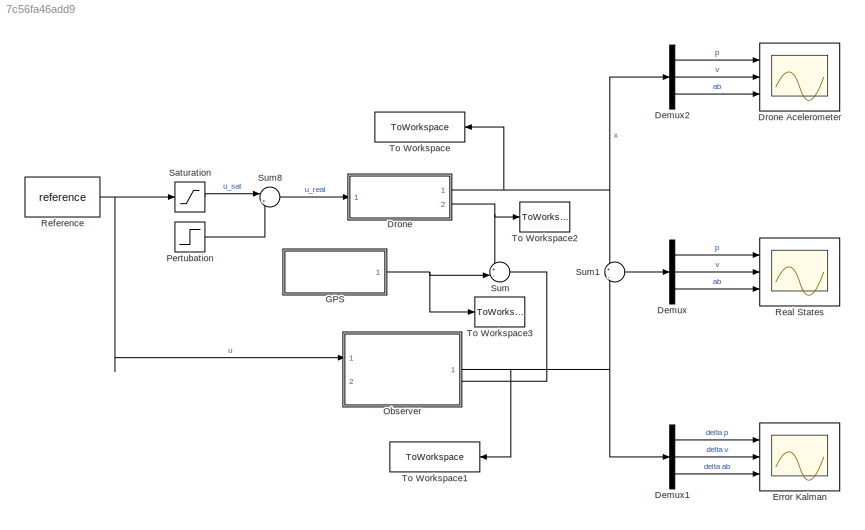
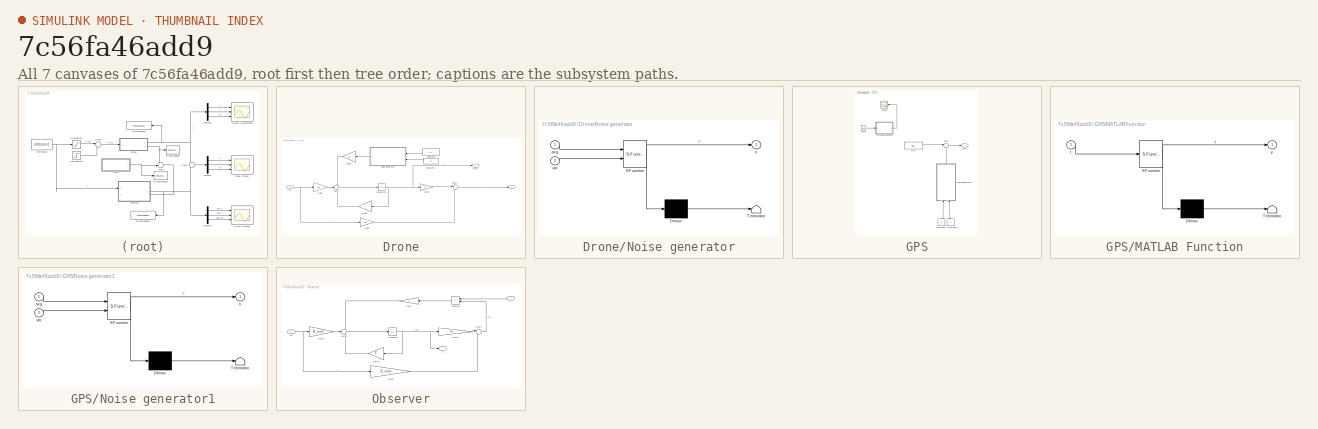
[diagram: thumbnail index - all 7 canvases of the model, root first then tree order]
MODEL slx_7c56fa46add9
KIND model
CONFIG AbsTol = auto
CONFIG EnableMultiTasking = off
CONFIG FixedStep = auto
CONFIG MaxStep = auto
CONFIG MinStep = auto
CONFIG RelTol = 1e-3
CONFIG SampleTimeConstraint = Unconstrained
CONFIG SolverName = VariableStepAuto
CONFIG StartTime = 0.0
CONFIG StopTime = 30
BLOCK [Demux] Demux
  Outputs = 3
  Ports = [1, 3]
BLOCK [Demux] Demux1
  Outputs = 3
  Ports = [1, 3]
BLOCK [Demux] Demux2
  Outputs = 3
  Ports = [1, 3]
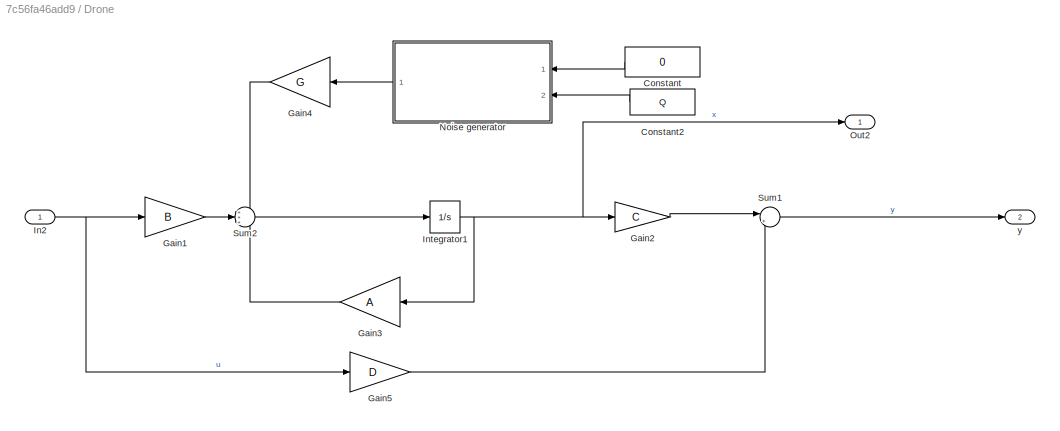
BLOCK [SubSystem] Drone
  Ports = [1, 2]
  RequestExecContextInheritance = off
BLOCK [Scope] Drone Acelerometer
  Floating = off
  NumInputPorts = 3
  Ports = [3]
  ScopeSpecificationString = Simulink.scopes.TimeScopeBlockCfg('CurrentConfiguration', extmgr.ConfigurationSet(extmgr.Configuration('Core','General UI',true),extmgr.Configuration('Core','Source UI',true),extmgr.Configuration('Sources','WiredSimulink',true,'DataLoggingVariableName','ScopeData2'),extmgr.Configuration('Visuals','Time Domain',true,'SerializedDisplays',{struct('MinYLimReal','-1.04091','MaxYLimReal','2.21958','YLab...<+3567ch>
BLOCK [Constant] Drone/Constant
  Value = 0
  VectorParams1D = off
BLOCK [Constant] Drone/Constant2
  Value = Q
BLOCK [Gain] Drone/Gain1
  Gain = B
  Multiplication = Matrix(K*u) (u vector)
BLOCK [Gain] Drone/Gain2
  Gain = C
  Multiplication = Matrix(K*u) (u vector)
BLOCK [Gain] Drone/Gain3
  Gain = A
  Multiplication = Matrix(K*u) (u vector)
BLOCK [Gain] Drone/Gain4
  Gain = G
  Multiplication = Matrix(K*u) (u vector)
BLOCK [Gain] Drone/Gain5
  Gain = D
  Multiplication = Matrix(K*u) (u vector)
BLOCK [Inport] Drone/In2
  IconDisplay = Signal name
BLOCK [Integrator] Drone/Integrator1
  InitialCondition = x0
  Ports = [1, 1]
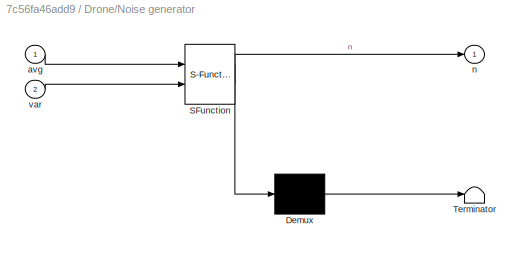
BLOCK [SubSystem] Drone/Noise generator
  ErrorFcn = Stateflow.Translate.translate
  PermitHierarchicalResolution = ExplicitOnly
  Ports = [2, 1]
  RequestExecContextInheritance = off
  SFBlockType = MATLAB Function
  TreatAsAtomicUnit = on
BLOCK [Demux] Drone/Noise generator/ Demux 
  Outputs = 1
  Ports = [1, 1]
BLOCK [S-Function] Drone/Noise generator/ SFunction 
  EnableBusSupport = on
  FunctionName = sf_sfun
  PortCounts = [2 2]
  Ports = [2, 2]
  SFcnIsStateOwnerBlock = off
  SFunctionDeploymentMode = off
  Tag = Stateflow S-Function 4
BLOCK [Terminator] Drone/Noise generator/ Terminator 
BLOCK [Inport] Drone/Noise generator/avg
BLOCK [Outport] Drone/Noise generator/n
BLOCK [Inport] Drone/Noise generator/var
  Port = 2
BLOCK [Outport] Drone/Out2
  IconDisplay = Signal name
BLOCK [Sum] Drone/Sum1
  Inputs = |++
  Ports = [2, 1]
BLOCK [Sum] Drone/Sum2
  Inputs = +++
  Ports = [3, 1]
BLOCK [Outport] Drone/y
  IconDisplay = Signal name
  Port = 2
BLOCK [Scope] Error Kalman
  Floating = off
  NumInputPorts = 3
  Ports = [3]
  ScopeSpecificationString = Simulink.scopes.TimeScopeBlockCfg('CurrentConfiguration', extmgr.ConfigurationSet(extmgr.Configuration('Core','General UI',true),extmgr.Configuration('Core','Source UI',true),extmgr.Configuration('Sources','WiredSimulink',true,'DataLoggingVariableName','ScopeData1'),extmgr.Configuration('Visuals','Time Domain',true,'SerializedDisplays',{struct('MinYLimReal','-1.043','MaxYLimReal','2.21933','YLabel...<+3491ch>
BLOCK [SubSystem] GPS
  Ports = [0, 1]
  RequestExecContextInheritance = off
BLOCK [Clock] GPS/Clock
BLOCK [Constant] GPS/Constant1
  NameLocation = left
  Value = 0
BLOCK [Constant] GPS/Constant3
  NameLocation = left
  Value = R
BLOCK [Constant] GPS/GPS
  SampleTime = h
  Value = gps
  VectorParams1D = off
BLOCK [SubSystem] GPS/MATLAB Function
  ErrorFcn = Stateflow.Translate.translate
  PermitHierarchicalResolution = ExplicitOnly
  Ports = [1, 1]
  RequestExecContextInheritance = off
  SFBlockType = MATLAB Function
  TreatAsAtomicUnit = on
BLOCK [Demux] GPS/MATLAB Function/ Demux 
  Outputs = 1
  Ports = [1, 1]
BLOCK [S-Function] GPS/MATLAB Function/ SFunction 
  EnableBusSupport = on
  FunctionName = sf_sfun
  Parameters = x0
  PortCounts = [1 2]
  Ports = [1, 2]
  SFcnIsStateOwnerBlock = off
  SFunctionDeploymentMode = off
  Tag = Stateflow S-Function 2
BLOCK [Terminator] GPS/MATLAB Function/ Terminator 
BLOCK [Inport] GPS/MATLAB Function/t
BLOCK [Outport] GPS/MATLAB Function/y
BLOCK [SubSystem] GPS/Noise generator1
  ErrorFcn = Stateflow.Translate.translate
  NameLocation = left
  PermitHierarchicalResolution = ExplicitOnly
  Ports = [2, 1]
  RequestExecContextInheritance = off
  SFBlockType = MATLAB Function
  TreatAsAtomicUnit = on
BLOCK [Demux] GPS/Noise generator1/ Demux 
  Outputs = 1
  Ports = [1, 1]
BLOCK [S-Function] GPS/Noise generator1/ SFunction 
  EnableBusSupport = on
  FunctionName = sf_sfun
  PortCounts = [2 2]
  Ports = [2, 2]
  SFcnIsStateOwnerBlock = off
  SFunctionDeploymentMode = off
  Tag = Stateflow S-Function 3
BLOCK [Terminator] GPS/Noise generator1/ Terminator 
BLOCK [Inport] GPS/Noise generator1/avg
BLOCK [Outport] GPS/Noise generator1/n
BLOCK [Inport] GPS/Noise generator1/var
  Port = 2
BLOCK [Outport] GPS/Out1
BLOCK [Scope] GPS/Scope
  Floating = off
  NumInputPorts = 1
  Ports = [1]
  ScopeSpecificationString = Simulink.scopes.TimeScopeBlockCfg('CurrentConfiguration', extmgr.ConfigurationSet(extmgr.Configuration('Core','General UI',true),extmgr.Configuration('Core','Source UI',true),extmgr.Configuration('Sources','WiredSimulink',true,'DataLoggingVariableName','ScopeData3'),extmgr.Configuration('Visuals','Time Domain',true,'SerializedDisplays',{struct('MinYLimReal','-561.375','MaxYLimReal','62.375','YLabe...<+1389ch>
BLOCK [Sum] GPS/Sum
  Inputs = |++
  Ports = [2, 1]
BLOCK [SubSystem] Observer
  PortSchema = {"entries":[{"content":{"sides":[{"content":{"connectorIds":["In1"]},"type":"ConnectorPlacement.EquallySpacedRectSide","uuid":"b6dae28a-5485-44ef-84e6-2d14792229e7"},{"content":{"connectorIds":["In2","Out1"],"side":"RIGHT"},"type":"ConnectorPlacement.EquallySpacedRectSide","uuid":"53a86c87-87d1-415f-9895-91b2b6ac7daf"},{"content":{"connectorIds":[],"side":"TOP"},"type":"ConnectorPlacement.EquallyS...<+390ch>
  Ports = [2, 1]
  RequestExecContextInheritance = off
BLOCK [Gain] Observer/Gain
  Gain = L
  Multiplication = Matrix(K*u) (u vector)
BLOCK [Gain] Observer/Gain1
  Gain = B_error
  Multiplication = Matrix(K*u) (u vector)
BLOCK [Gain] Observer/Gain2
  Gain = H
  Multiplication = Matrix(K*u) (u vector)
BLOCK [Gain] Observer/Gain3
  Gain = F
  Multiplication = Matrix(K*u) (u vector)
BLOCK [Gain] Observer/Gain5
  Gain = D_error
  Multiplication = Matrix(K*u) (u vector)
BLOCK [Inport] Observer/In2
  IconDisplay = Signal name
BLOCK [Integrator] Observer/Integrator
  InitialCondition = x0_observer
  Ports = [1, 1]
BLOCK [Sum] Observer/Subtract
  IconShape = rectangular
  Inputs = +-
  Ports = [2, 1]
BLOCK [Sum] Observer/Sum1
  Inputs = |++
  Ports = [2, 1]
BLOCK [Sum] Observer/Sum2
  Inputs = +++
  Ports = [3, 1]
BLOCK [Outport] Observer/x
  IconDisplay = Signal name
BLOCK [Inport] Observer/y
  Port = 2
BLOCK [Step] Pertubation
  After = wind_final_value
  Before = wind_initial_value
  SampleTime = h_plant
  Time = wind_steptime
BLOCK [Scope] Real States
  Floating = off
  NumInputPorts = 3
  Ports = [3]
  ScopeSpecificationString = Simulink.scopes.TimeScopeBlockCfg('CurrentConfiguration', extmgr.ConfigurationSet(extmgr.Configuration('Core','General UI',true),extmgr.Configuration('Core','Source UI',true),extmgr.Configuration('Sources','WiredSimulink',true),extmgr.Configuration('Visuals','Time Domain',true,'SerializedDisplays',{struct('MinYLimReal','-0.63431','MaxYLimReal','0.87759','YLabelReal','','MinYLimMag','0.00000','MaxY...<+3527ch>
BLOCK [Constant] Reference
  SampleTime = h
  Value = reference
BLOCK [Saturate] Saturation
  LowerLimit = sat_min
  UpperLimit = sat_max
BLOCK [Sum] Sum
  Inputs = +-|
  Ports = [2, 1]
BLOCK [Sum] Sum1
  Inputs = +|-
  Ports = [2, 1]
BLOCK [Sum] Sum8
  Inputs = |++
  Ports = [2, 1]
BLOCK [ToWorkspace] To Workspace
  FixptAsFi = on
  MaxDataPoints = inf
  Ports = [1]
  SampleTime = -1
  SaveFormat = Timeseries
  VariableName = xt
BLOCK [ToWorkspace] To Workspace1
  FixptAsFi = on
  MaxDataPoints = inf
  Ports = [1]
  SampleTime = -1
  SaveFormat = Timeseries
  VariableName = deltax
BLOCK [ToWorkspace] To Workspace2
  FixptAsFi = on
  MaxDataPoints = inf
  Ports = [1]
  SampleTime = -1
  SaveFormat = Timeseries
  VariableName = pt
BLOCK [ToWorkspace] To Workspace3
  FixptAsFi = on
  MaxDataPoints = inf
  Ports = [1]
  SampleTime = -1
  SaveFormat = Timeseries
  VariableName = p
LINE Demux1:1 -> Error Kalman:1
LINE Demux1:2 -> Error Kalman:2
LINE Demux1:3 -> Error Kalman:3
LINE Demux2:1 -> Drone Acelerometer:1
LINE Demux2:2 -> Drone Acelerometer:2
LINE Demux2:3 -> Drone Acelerometer:3
LINE Demux:1 -> Real States:1
LINE Demux:2 -> Real States:2
LINE Demux:3 -> Real States:3
LINE Drone/Constant2:1 -> Drone/Noise generator:2
LINE Drone/Constant:1 -> Drone/Noise generator:1
LINE Drone/Gain1:1 -> Drone/Sum2:2
LINE Drone/Gain2:1 -> Drone/Sum1:1
LINE Drone/Gain3:1 -> Drone/Sum2:3
LINE Drone/Gain4:1 -> Drone/Sum2:1
LINE Drone/Gain5:1 -> Drone/Sum1:2
NET Drone/In2:1 -> Drone/Gain1:1, Drone/Gain5:1
NET Drone/Integrator1:1 -> Drone/Gain2:1, Drone/Gain3:1, Drone/Out2:1
LINE Drone/Noise generator:1 -> Drone/Gain4:1
LINE Drone/Sum1:1 -> Drone/y:1
LINE Drone/Sum2:1 -> Drone/Integrator1:1
NET Drone:1 -> Demux2:1, Sum1:1, To Workspace:1
NET Drone:2 -> Sum:1, To Workspace2:1
LINE GPS/Clock:1 -> GPS/MATLAB Function:1
LINE GPS/Constant1:1 -> GPS/Noise generator1:1
LINE GPS/Constant3:1 -> GPS/Noise generator1:2
LINE GPS/GPS:1 -> GPS/Sum:1
LINE GPS/MATLAB Function:1 -> GPS/Scope:1
LINE GPS/Noise generator1:1 -> GPS/Sum:2
LINE GPS/Sum:1 -> GPS/Out1:1
NET GPS:1 -> Sum:2, To Workspace3:1
LINE Observer/Gain1:1 -> Observer/Sum2:2
LINE Observer/Gain2:1 -> Observer/Sum1:1
LINE Observer/Gain3:1 -> Observer/Sum2:3
LINE Observer/Gain5:1 -> Observer/Sum1:2
LINE Observer/Gain:1 -> Observer/Sum2:1
NET Observer/In2:1 -> Observer/Gain1:1, Observer/Gain5:1
NET Observer/Integrator:1 -> Observer/Gain2:1, Observer/Gain3:1, Observer/x:1
LINE Observer/Subtract:1 -> Observer/Gain:1
LINE Observer/Sum1:1 -> Observer/Subtract:2
LINE Observer/Sum2:1 -> Observer/Integrator:1
LINE Observer/y:1 -> Observer/Subtract:1
NET Observer:1 -> Demux1:1, Sum1:2, To Workspace1:1
LINE Pertubation:1 -> Sum8:2
NET Reference:1 -> Observer:1, Saturation:1
LINE Saturation:1 -> Sum8:1
LINE Sum1:1 -> Demux:1
LINE Sum8:1 -> Drone:1
LINE Sum:1 -> Observer:2
note: NET lines group one-source signal fan-out (src -> all destinations, sorted); 1:1 wires keep LINE
CHART GPS/Noise generator1 states=1 transitions=1
  STATE_LABEL 'eML_blk_kernel()'
  STATE_LABEL 'SCRIPT:\nfunction n = generate_gaussian_noise(avg, var)\nn = avg + var*randn(length(var), 1);'
CHART Drone/Noise generator states=1 transitions=1
  STATE_LABEL 'eML_blk_kernel()'
  STATE_LABEL 'SCRIPT:\nfunction n = generate_gaussian_noise(avg, var)\nn = avg + var*randn(length(var), 1);'
CHART GPS/MATLAB Function states=1 transitions=1
  STATE_LABEL 'eML_blk_kernel()'
  STATE_LABEL 'SCRIPT:\nfunction y = fcn(t, x0)\n    y = [0;0;(x0(3) + x0(6)*t -9.98*(t^2)/2)];\n'
CHART  states=0 transitions=0
CHART  states=0 transitions=0
CHART  states=0 transitions=0
